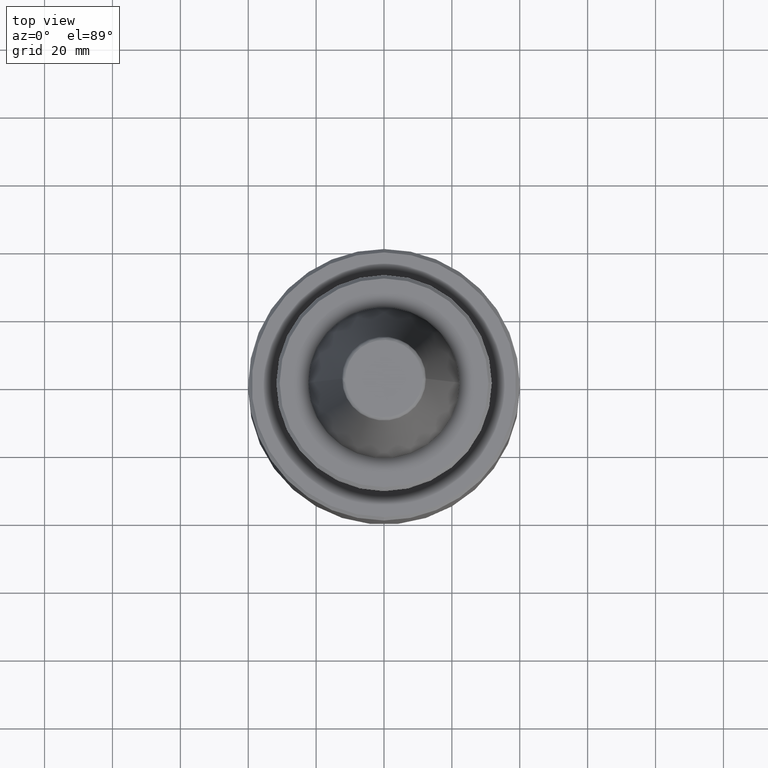
[diagram: clean part render]
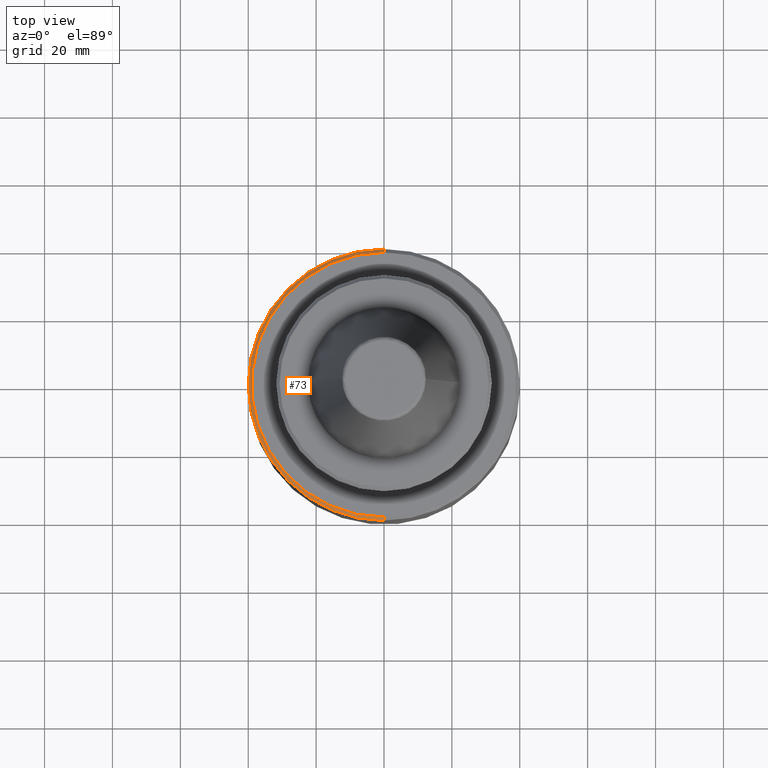
[diagram: same view with one face highlighted and labeled with its STEP entity id]
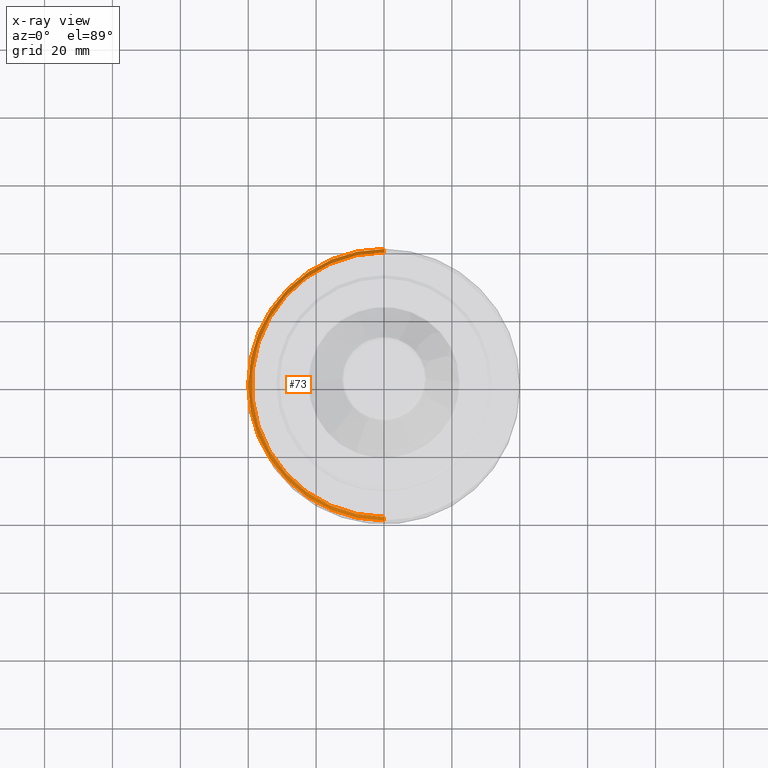
[diagram: x-ray of the same camera — body ghosted, the highlighted face saturated]
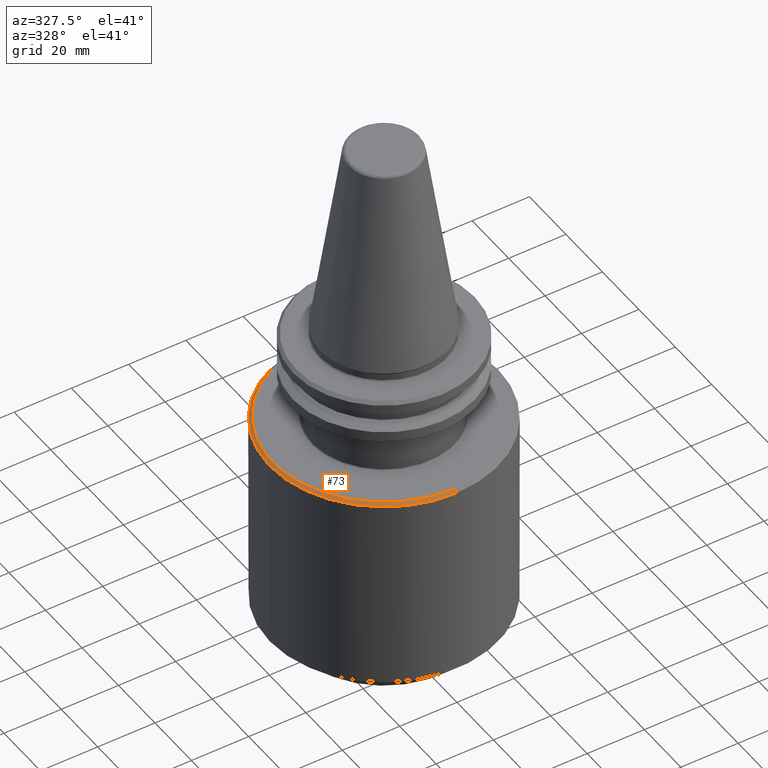
[diagram: same view with one face highlighted and labeled with its STEP entity id]
A machine part, top view. The second image highlights one B-rep face of the part: STEP entity #73.
The next image is the same camera in x-ray: the body ghosted, the highlighted face saturated — about 0% of this face is hidden behind the body in this view.
A second angle (auxiliary view) of the same face is appended — the face is thin or edge-on in the first view.
In plain terms, the highlighted conical surface has half-angle 45 deg.
Its self-contained STEP definition (entity closure, byte-faithful):
#12 = DIRECTION ( 'NONE',  ( 1.000000000000000000, 0.0000000000000000000, 0.0000000000000000000 ) ) ;
#13 = DIRECTION ( 'NONE',  ( -0.0000000000000000000, -0.0000000000000000000, -1.000000000000000000 ) ) ;
#14 = CARTESIAN_POINT ( 'NONE',  ( 0.0000000000000000000, 0.0000000000000000000, -36.50000000000000700 ) ) ;
#30 = CARTESIAN_POINT ( 'NONE',  ( 4.837354856632044700E-015, -39.00000000000000000, -35.50000000000001400 ) ) ;
#59 = AXIS2_PLACEMENT_3D ( 'NONE', #566, #565, #564 ) ;
#73 = ADVANCED_FACE ( 'NONE', ( #220 ), #996, .T. ) ;
#220 = FACE_OUTER_BOUND ( 'NONE', #370, .T. ) ;
#233 = EDGE_CURVE ( 'NONE', #1537, #306, #785, .T. ) ;
#306 = VERTEX_POINT ( 'NONE', #1469 ) ;
#370 = EDGE_LOOP ( 'NONE', ( #539, #1004, #704, #1487, #1200 ) ) ;
#375 = CARTESIAN_POINT ( 'NONE',  ( 4.898587196589411400E-015, -39.99999999999998600, -36.50000000000000700 ) ) ;
#395 = VECTOR ( 'NONE', #1391, 1000.000000000000000 ) ;
#503 = EDGE_CURVE ( 'NONE', #916, #1537, #1923, .T. ) ;
#539 = ORIENTED_EDGE ( 'NONE', *, *, #1478, .F. ) ;
#564 = DIRECTION ( 'NONE',  ( 0.0000000000000000000, 1.000000000000000000, 0.0000000000000000000 ) ) ;
#565 = DIRECTION ( 'NONE',  ( 0.0000000000000000000, 8.673617379884036700E-017, -1.000000000000000000 ) ) ;
#566 = CARTESIAN_POINT ( 'NONE',  ( 0.0000000000000000000, -8.673617379884044100E-017, -35.50000000000001400 ) ) ;
#577 = CARTESIAN_POINT ( 'NONE',  ( 4.898587196589413000E-015, -40.00000000000000000, -36.50000000000002100 ) ) ;
#580 = AXIS2_PLACEMENT_3D ( 'NONE', #14, #13, #12 ) ;
#704 = ORIENTED_EDGE ( 'NONE', *, *, #233, .T. ) ;
#734 = DIRECTION ( 'NONE',  ( 1.000000000000000000, 0.0000000000000000000, 0.0000000000000000000 ) ) ;
#783 = DIRECTION ( 'NONE',  ( 8.659560562354932900E-017, -0.7071067811865473500, -0.7071067811865477900 ) ) ;
#785 = LINE ( 'NONE', #1354, #395 ) ;
#791 = CIRCLE ( 'NONE', #1393, 39.99999999999999300 ) ;
#797 = VERTEX_POINT ( 'NONE', #375 ) ;
#916 = VERTEX_POINT ( 'NONE', #30 ) ;
#953 = DIRECTION ( 'NONE',  ( -0.0000000000000000000, -0.0000000000000000000, -1.000000000000000000 ) ) ;
#964 = EDGE_CURVE ( 'NONE', #1245, #306, #1183, .T. ) ;
#974 = CARTESIAN_POINT ( 'NONE',  ( 0.0000000000000000000, 0.0000000000000000000, -36.50000000000001400 ) ) ;
#996 = CONICAL_SURFACE ( 'NONE', #1630, 40.00000000000000000, 0.7853981633974482800 ) ;
#1004 = ORIENTED_EDGE ( 'NONE', *, *, #503, .T. ) ;
#1098 = DIRECTION ( 'NONE',  ( 0.0000000000000000000, 8.673617379884036700E-017, -1.000000000000000000 ) ) ;
#1135 = LINE ( 'NONE', #577, #1242 ) ;
#1158 = DIRECTION ( 'NONE',  ( 0.0000000000000000000, 1.000000000000000000, 1.734723475976807100E-016 ) ) ;
#1183 = CIRCLE ( 'NONE', #580, 39.99999999999999300 ) ;
#1200 = ORIENTED_EDGE ( 'NONE', *, *, #1372, .F. ) ;
#1242 = VECTOR ( 'NONE', #783, 999.9999999999998900 ) ;
#1245 = VERTEX_POINT ( 'NONE', #1628 ) ;
#1354 = CARTESIAN_POINT ( 'NONE',  ( 0.0000000000000000000, 40.00000000000000000, -36.50000000000000700 ) ) ;
#1372 = EDGE_CURVE ( 'NONE', #797, #1245, #791, .T. ) ;
#1391 = DIRECTION ( 'NONE',  ( 0.0000000000000000000, 0.7071067811865475700, -0.7071067811865474600 ) ) ;
#1393 = AXIS2_PLACEMENT_3D ( 'NONE', #1419, #953, #734 ) ;
#1419 = CARTESIAN_POINT ( 'NONE',  ( 0.0000000000000000000, 0.0000000000000000000, -36.50000000000000700 ) ) ;
#1469 = CARTESIAN_POINT ( 'NONE',  ( 0.0000000000000000000, 40.00000000000000000, -36.50000000000000700 ) ) ;
#1478 = EDGE_CURVE ( 'NONE', #916, #797, #1135, .T. ) ;
#1487 = ORIENTED_EDGE ( 'NONE', *, *, #964, .F. ) ;
#1537 = VERTEX_POINT ( 'NONE', #1607 ) ;
#1607 = CARTESIAN_POINT ( 'NONE',  ( 0.0000000000000000000, 39.00000000000000000, -35.50000000000001400 ) ) ;
#1628 = CARTESIAN_POINT ( 'NONE',  ( -39.99999999999999300, 4.898587196589412200E-015, -36.50000000000000700 ) ) ;
#1630 = AXIS2_PLACEMENT_3D ( 'NONE', #974, #1098, #1158 ) ;
#1923 = CIRCLE ( 'NONE', #59, 39.00000000000000000 ) ;